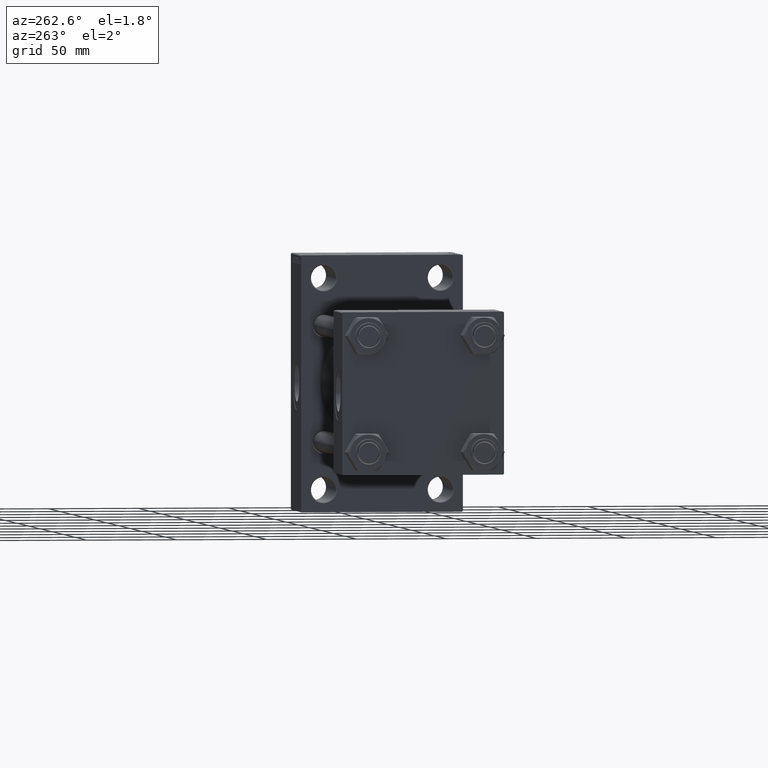
[diagram: clean part render]
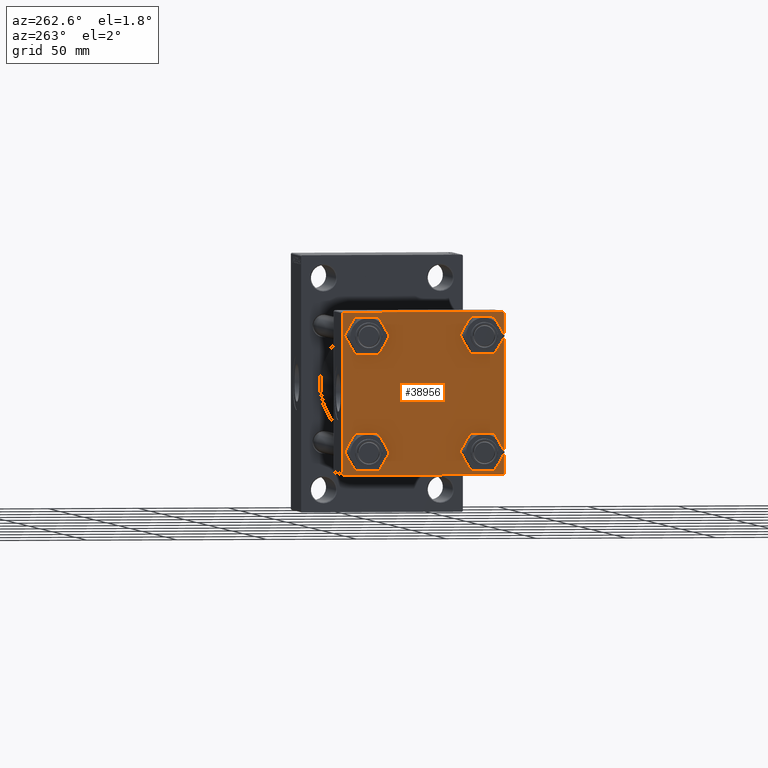
[diagram: same view with one face highlighted and labeled with its STEP entity id]
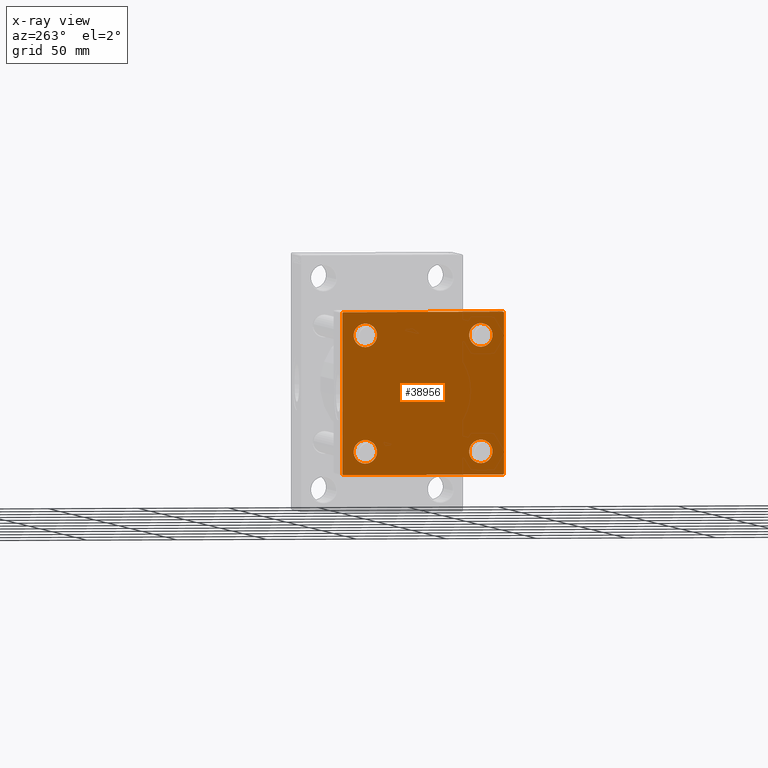
[diagram: x-ray of the same camera — body ghosted, the highlighted face saturated]
A machine part, auxiliary view. The second image highlights one B-rep face of the part: STEP entity #38956.
The next image is the same camera in x-ray: the body ghosted, the highlighted face saturated — about 0% of this face is hidden behind the body in this view.
In plain terms, the highlighted planar face has unit normal (-1, 0, 0).
Its self-contained STEP definition (entity closure, byte-faithful):
#472 = DIRECTION ( 'NONE',  ( 0.000000000000000000, -0.7071067811865474617, 0.7071067811865474617 ) ) ;
#868 = AXIS2_PLACEMENT_3D ( 'NONE', #13914, #9858, #13171 ) ;
#992 = EDGE_CURVE ( 'NONE', #7891, #40020, #4404, .T. ) ;
#1459 = VECTOR ( 'NONE', #18263, 1000.000000000000000 ) ;
#1550 = EDGE_CURVE ( 'NONE', #18924, #25708, #6820, .T. ) ;
#2191 = ORIENTED_EDGE ( 'NONE', *, *, #1550, .T. ) ;
#2353 = CIRCLE ( 'NONE', #36342, 6.499999999999977796 ) ;
#2430 = CARTESIAN_POINT ( 'NONE',  ( -0.000000000000000000, -44.75000000000029843, 44.74999999999967315 ) ) ;
#2577 = VERTEX_POINT ( 'NONE', #47281 ) ;
#2627 = EDGE_CURVE ( 'NONE', #6069, #46136, #30332, .T. ) ;
#3057 = FACE_BOUND ( 'NONE', #37354, .T. ) ;
#3401 = CARTESIAN_POINT ( 'NONE',  ( 0.000000000000000000, -45.00000000000000000, -44.49999999999995737 ) ) ;
#3402 = LINE ( 'NONE', #14801, #36439 ) ;
#3639 = DIRECTION ( 'NONE',  ( 0.000000000000000000, 0.000000000000000000, 1.000000000000000000 ) ) ;
#4404 = CIRCLE ( 'NONE', #8436, 6.500000000000019540 ) ;
#5410 = EDGE_LOOP ( 'NONE', ( #27443, #12886 ) ) ;
#6069 = VERTEX_POINT ( 'NONE', #33803 ) ;
#6613 = LINE ( 'NONE', #42074, #20222 ) ;
#6701 = DIRECTION ( 'NONE',  ( -0.000000000000000000, 0.7071067811865425767, 0.7071067811865524577 ) ) ;
#6820 = CIRCLE ( 'NONE', #35139, 6.499999999999977796 ) ;
#6838 = DIRECTION ( 'NONE',  ( -0.000000000000000000, 0.000000000000000000, 1.000000000000000000 ) ) ;
#7120 = EDGE_CURVE ( 'NONE', #40020, #7891, #12572, .T. ) ;
#7129 = CARTESIAN_POINT ( 'NONE',  ( 0.000000000000000000, 32.14999999999999147, -38.64999999999998437 ) ) ;
#7328 = CARTESIAN_POINT ( 'NONE',  ( 0.000000000000000000, 0.000000000000000000, 0.000000000000000000 ) ) ;
#7670 = DIRECTION ( 'NONE',  ( 1.000000000000000000, -0.000000000000000000, 0.000000000000000000 ) ) ;
#7732 = AXIS2_PLACEMENT_3D ( 'NONE', #37920, #39603, #48185 ) ;
#7891 = VERTEX_POINT ( 'NONE', #45235 ) ;
#8436 = AXIS2_PLACEMENT_3D ( 'NONE', #40541, #32699, #44343 ) ;
#9124 = VECTOR ( 'NONE', #13908, 1000.000000000000000 ) ;
#9528 = CARTESIAN_POINT ( 'NONE',  ( 0.000000000000000000, -32.14999999999997726, -25.65000000000003411 ) ) ;
#9858 = DIRECTION ( 'NONE',  ( 1.000000000000000000, -0.000000000000000000, 0.000000000000000000 ) ) ;
#10396 = VERTEX_POINT ( 'NONE', #27523 ) ;
#10467 = LINE ( 'NONE', #18820, #38370 ) ;
#10630 = FACE_BOUND ( 'NONE', #5410, .T. ) ;
#11591 = CARTESIAN_POINT ( 'NONE',  ( 0.000000000000000000, -44.74999999999998579, -44.74999999999998579 ) ) ;
#11769 = EDGE_CURVE ( 'NONE', #27384, #10396, #48650, .T. ) ;
#12282 = DIRECTION ( 'NONE',  ( 1.000000000000000000, -0.000000000000000000, 0.000000000000000000 ) ) ;
#12572 = CIRCLE ( 'NONE', #7732, 6.500000000000019540 ) ;
#12886 = ORIENTED_EDGE ( 'NONE', *, *, #32485, .T. ) ;
#12921 = EDGE_CURVE ( 'NONE', #47173, #10396, #25203, .T. ) ;
#13135 = AXIS2_PLACEMENT_3D ( 'NONE', #39148, #12282, #46231 ) ;
#13171 = DIRECTION ( 'NONE',  ( 0.000000000000000000, 0.000000000000000000, 1.000000000000000000 ) ) ;
#13696 = CARTESIAN_POINT ( 'NONE',  ( 0.000000000000000000, -44.49999999999995737, -45.00000000000000000 ) ) ;
#13790 = ORIENTED_EDGE ( 'NONE', *, *, #992, .T. ) ;
#13908 = DIRECTION ( 'NONE',  ( 0.000000000000000000, 7.709882115452476934E-17, -1.000000000000000000 ) ) ;
#13914 = CARTESIAN_POINT ( 'NONE',  ( 0.000000000000000000, -32.14999999999997726, -32.15000000000001279 ) ) ;
#14571 = ORIENTED_EDGE ( 'NONE', *, *, #21108, .T. ) ;
#14694 = FACE_BOUND ( 'NONE', #48129, .T. ) ;
#14801 = CARTESIAN_POINT ( 'NONE',  ( 0.000000000000000000, 44.99999999999998579, -44.99999999999998579 ) ) ;
#15002 = ORIENTED_EDGE ( 'NONE', *, *, #47688, .T. ) ;
#15440 = PLANE ( 'NONE',  #23723 ) ;
#15753 = EDGE_CURVE ( 'NONE', #46136, #6069, #2353, .T. ) ;
#16148 = LINE ( 'NONE', #11591, #21476 ) ;
#16981 = CARTESIAN_POINT ( 'NONE',  ( 0.000000000000000000, 32.14999999999999147, 32.15000000000000568 ) ) ;
#17627 = VERTEX_POINT ( 'NONE', #9528 ) ;
#18263 = DIRECTION ( 'NONE',  ( 0.000000000000000000, -1.000000000000000000, -1.541976423090495387E-16 ) ) ;
#18454 = ORIENTED_EDGE ( 'NONE', *, *, #7120, .T. ) ;
#18508 = CARTESIAN_POINT ( 'NONE',  ( 0.000000000000000000, 44.99999999999998579, 45.00000000000001421 ) ) ;
#18820 = CARTESIAN_POINT ( 'NONE',  ( 0.000000000000000000, 44.74999999999999289, 44.74999999999999289 ) ) ;
#18924 = VERTEX_POINT ( 'NONE', #20439 ) ;
#18998 = DIRECTION ( 'NONE',  ( 1.000000000000000000, -0.000000000000000000, 0.000000000000000000 ) ) ;
#20222 = VECTOR ( 'NONE', #38035, 1000.000000000000114 ) ;
#20439 = CARTESIAN_POINT ( 'NONE',  ( 0.000000000000000000, 32.14999999999999147, 25.65000000000002700 ) ) ;
#21031 = DIRECTION ( 'NONE',  ( 0.000000000000000000, 0.000000000000000000, 1.000000000000000000 ) ) ;
#21108 = EDGE_CURVE ( 'NONE', #36436, #26366, #3402, .T. ) ;
#21135 = LINE ( 'NONE', #25182, #26947 ) ;
#21476 = VECTOR ( 'NONE', #472, 1000.000000000000114 ) ;
#22371 = CARTESIAN_POINT ( 'NONE',  ( 0.000000000000000000, 44.49999999999998579, -44.99999999999998579 ) ) ;
#22797 = CARTESIAN_POINT ( 'NONE',  ( 0.000000000000000000, 32.14999999999999147, -32.15000000000000568 ) ) ;
#22834 = ORIENTED_EDGE ( 'NONE', *, *, #11769, .F. ) ;
#23723 = AXIS2_PLACEMENT_3D ( 'NONE', #7328, #30145, #6838 ) ;
#23818 = CARTESIAN_POINT ( 'NONE',  ( 0.000000000000000000, 44.99999999999998579, -44.49999999999995737 ) ) ;
#24367 = CARTESIAN_POINT ( 'NONE',  ( 0.000000000000000000, 44.99999999999998579, 44.50000000000001421 ) ) ;
#25182 = CARTESIAN_POINT ( 'NONE',  ( 0.000000000000000000, 44.99999999999998579, 45.00000000000001421 ) ) ;
#25203 = LINE ( 'NONE', #2430, #39489 ) ;
#25278 = ORIENTED_EDGE ( 'NONE', *, *, #31449, .T. ) ;
#25691 = DIRECTION ( 'NONE',  ( 0.000000000000000000, 0.000000000000000000, -1.000000000000000000 ) ) ;
#25708 = VERTEX_POINT ( 'NONE', #27087 ) ;
#26366 = VERTEX_POINT ( 'NONE', #13696 ) ;
#26940 = DIRECTION ( 'NONE',  ( 0.000000000000000000, -1.000000000000000000, -1.541976423090495633E-16 ) ) ;
#26947 = VECTOR ( 'NONE', #25691, 1000.000000000000000 ) ;
#27051 = VERTEX_POINT ( 'NONE', #24367 ) ;
#27087 = CARTESIAN_POINT ( 'NONE',  ( 0.000000000000000000, 32.14999999999999147, 38.64999999999999147 ) ) ;
#27384 = VERTEX_POINT ( 'NONE', #29612 ) ;
#27408 = EDGE_CURVE ( 'NONE', #47173, #45789, #45058, .T. ) ;
#27443 = ORIENTED_EDGE ( 'NONE', *, *, #29686, .T. ) ;
#27523 = CARTESIAN_POINT ( 'NONE',  ( 0.000000000000000000, -44.49999999999995737, 45.00000000000000000 ) ) ;
#27595 = EDGE_CURVE ( 'NONE', #27051, #45022, #21135, .T. ) ;
#27705 = AXIS2_PLACEMENT_3D ( 'NONE', #42132, #7670, #3639 ) ;
#29333 = CIRCLE ( 'NONE', #13135, 6.499999999999977796 ) ;
#29523 = AXIS2_PLACEMENT_3D ( 'NONE', #22797, #18998, #38262 ) ;
#29612 = CARTESIAN_POINT ( 'NONE',  ( 0.000000000000000000, 44.49999999999998579, 45.00000000000001421 ) ) ;
#29686 = EDGE_CURVE ( 'NONE', #17627, #2577, #43082, .T. ) ;
#30094 = EDGE_CURVE ( 'NONE', #27384, #27051, #10467, .T. ) ;
#30145 = DIRECTION ( 'NONE',  ( -1.000000000000000000, 0.000000000000000000, -0.000000000000000000 ) ) ;
#30332 = CIRCLE ( 'NONE', #29523, 6.499999999999977796 ) ;
#31449 = EDGE_CURVE ( 'NONE', #45022, #36436, #6613, .T. ) ;
#31946 = DIRECTION ( 'NONE',  ( 1.000000000000000000, -0.000000000000000000, 0.000000000000000000 ) ) ;
#32023 = ORIENTED_EDGE ( 'NONE', *, *, #27408, .F. ) ;
#32485 = EDGE_CURVE ( 'NONE', #2577, #17627, #44517, .T. ) ;
#32699 = DIRECTION ( 'NONE',  ( 1.000000000000000000, -0.000000000000000000, 0.000000000000000000 ) ) ;
#33002 = DIRECTION ( 'NONE',  ( 1.000000000000000000, -0.000000000000000000, 0.000000000000000000 ) ) ;
#33784 = DIRECTION ( 'NONE',  ( 0.000000000000000000, 0.7071067811865474617, -0.7071067811865474617 ) ) ;
#33803 = CARTESIAN_POINT ( 'NONE',  ( 0.000000000000000000, 32.14999999999999147, -25.65000000000002700 ) ) ;
#33844 = CARTESIAN_POINT ( 'NONE',  ( 0.000000000000000000, -45.00000000000000711, 44.49999999999997158 ) ) ;
#33947 = FACE_OUTER_BOUND ( 'NONE', #37444, .T. ) ;
#35021 = CARTESIAN_POINT ( 'NONE',  ( 0.000000000000000000, -32.14999999999997726, 38.65000000000003411 ) ) ;
#35139 = AXIS2_PLACEMENT_3D ( 'NONE', #16981, #31946, #21031 ) ;
#36316 = DIRECTION ( 'NONE',  ( 0.000000000000000000, 0.000000000000000000, 1.000000000000000000 ) ) ;
#36342 = AXIS2_PLACEMENT_3D ( 'NONE', #37059, #33002, #36316 ) ;
#36436 = VERTEX_POINT ( 'NONE', #22371 ) ;
#36439 = VECTOR ( 'NONE', #26940, 1000.000000000000000 ) ;
#37059 = CARTESIAN_POINT ( 'NONE',  ( 0.000000000000000000, 32.14999999999999147, -32.15000000000000568 ) ) ;
#37354 = EDGE_LOOP ( 'NONE', ( #18454, #13790 ) ) ;
#37444 = EDGE_LOOP ( 'NONE', ( #50024, #25278, #14571, #15002, #32023, #39235, #22834, #41601 ) ) ;
#37792 = EDGE_CURVE ( 'NONE', #25708, #18924, #29333, .T. ) ;
#37920 = CARTESIAN_POINT ( 'NONE',  ( 0.000000000000000000, -32.14999999999997726, 32.15000000000001279 ) ) ;
#38035 = DIRECTION ( 'NONE',  ( -0.000000000000000000, -0.7071067811865474617, -0.7071067811865474617 ) ) ;
#38239 = ORIENTED_EDGE ( 'NONE', *, *, #37792, .T. ) ;
#38262 = DIRECTION ( 'NONE',  ( 0.000000000000000000, 0.000000000000000000, 1.000000000000000000 ) ) ;
#38370 = VECTOR ( 'NONE', #33784, 1000.000000000000114 ) ;
#38956 = ADVANCED_FACE ( 'NONE', ( #3057, #10630, #14694, #41794, #33947 ), #15440, .T. ) ;
#39148 = CARTESIAN_POINT ( 'NONE',  ( 0.000000000000000000, 32.14999999999999147, 32.15000000000000568 ) ) ;
#39235 = ORIENTED_EDGE ( 'NONE', *, *, #12921, .T. ) ;
#39489 = VECTOR ( 'NONE', #6701, 1000.000000000000114 ) ;
#39603 = DIRECTION ( 'NONE',  ( 1.000000000000000000, -0.000000000000000000, 0.000000000000000000 ) ) ;
#39609 = ORIENTED_EDGE ( 'NONE', *, *, #2627, .T. ) ;
#40020 = VERTEX_POINT ( 'NONE', #35021 ) ;
#40541 = CARTESIAN_POINT ( 'NONE',  ( 0.000000000000000000, -32.14999999999997726, 32.15000000000001279 ) ) ;
#41601 = ORIENTED_EDGE ( 'NONE', *, *, #30094, .T. ) ;
#41794 = FACE_BOUND ( 'NONE', #49806, .T. ) ;
#42011 = CARTESIAN_POINT ( 'NONE',  ( 0.000000000000000000, -45.00000000000000711, 45.00000000000000000 ) ) ;
#42074 = CARTESIAN_POINT ( 'NONE',  ( 0.000000000000000000, 44.74999999999998579, -44.74999999999998579 ) ) ;
#42132 = CARTESIAN_POINT ( 'NONE',  ( 0.000000000000000000, -32.14999999999997726, -32.15000000000001279 ) ) ;
#43082 = CIRCLE ( 'NONE', #27705, 6.499999999999977796 ) ;
#44343 = DIRECTION ( 'NONE',  ( 0.000000000000000000, 0.000000000000000000, 1.000000000000000000 ) ) ;
#44517 = CIRCLE ( 'NONE', #868, 6.499999999999977796 ) ;
#45022 = VERTEX_POINT ( 'NONE', #23818 ) ;
#45058 = LINE ( 'NONE', #42011, #9124 ) ;
#45235 = CARTESIAN_POINT ( 'NONE',  ( 0.000000000000000000, -32.14999999999997726, 25.64999999999999147 ) ) ;
#45789 = VERTEX_POINT ( 'NONE', #3401 ) ;
#46136 = VERTEX_POINT ( 'NONE', #7129 ) ;
#46231 = DIRECTION ( 'NONE',  ( 0.000000000000000000, 0.000000000000000000, 1.000000000000000000 ) ) ;
#47173 = VERTEX_POINT ( 'NONE', #33844 ) ;
#47281 = CARTESIAN_POINT ( 'NONE',  ( 0.000000000000000000, -32.14999999999997726, -38.64999999999999147 ) ) ;
#47688 = EDGE_CURVE ( 'NONE', #26366, #45789, #16148, .T. ) ;
#48129 = EDGE_LOOP ( 'NONE', ( #39609, #48837 ) ) ;
#48185 = DIRECTION ( 'NONE',  ( 0.000000000000000000, 0.000000000000000000, 1.000000000000000000 ) ) ;
#48650 = LINE ( 'NONE', #18508, #1459 ) ;
#48837 = ORIENTED_EDGE ( 'NONE', *, *, #15753, .T. ) ;
#49806 = EDGE_LOOP ( 'NONE', ( #38239, #2191 ) ) ;
#50024 = ORIENTED_EDGE ( 'NONE', *, *, #27595, .T. ) ;